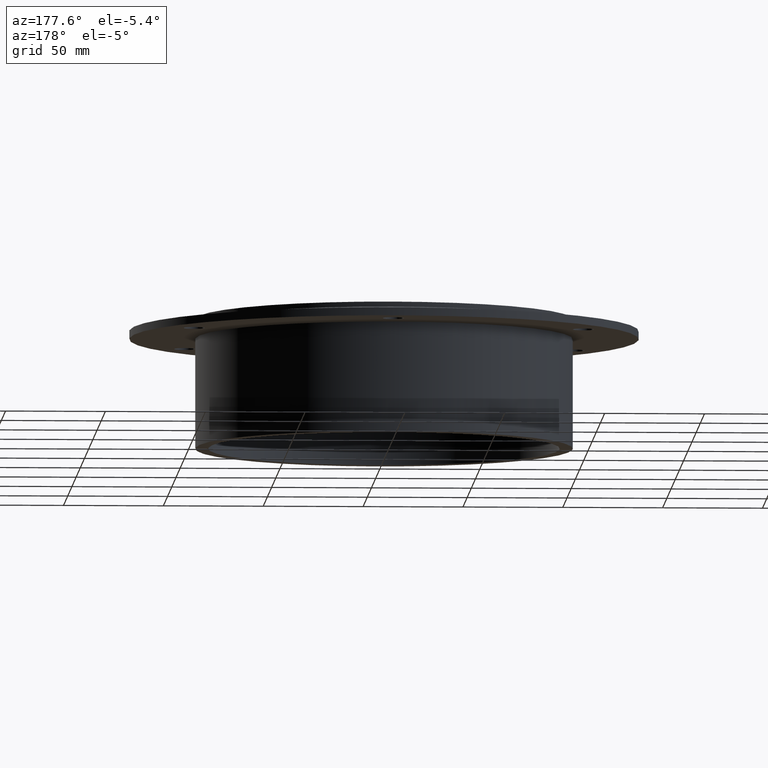
[diagram: clean part render]
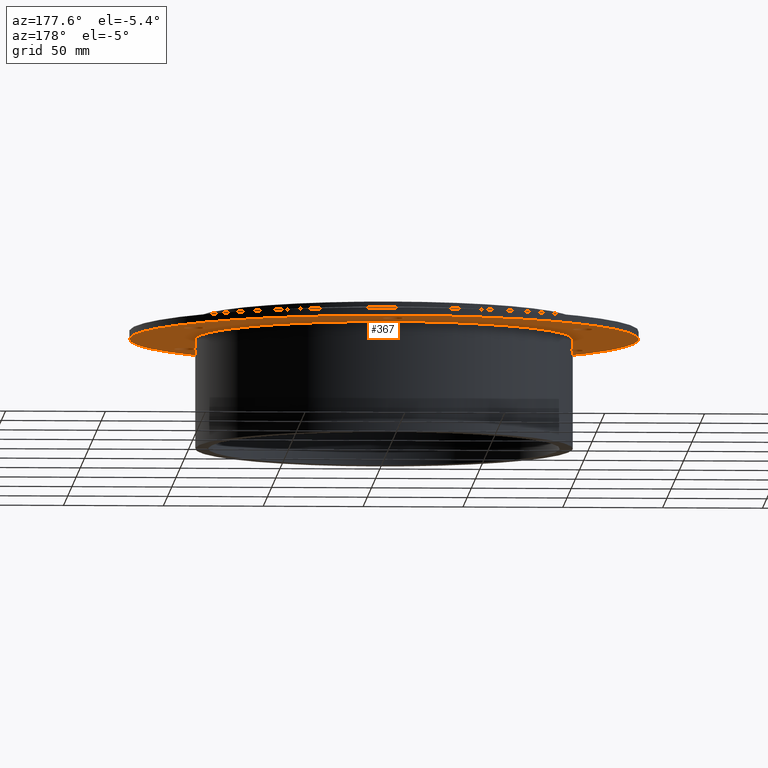
[diagram: same view with one face highlighted and labeled with its STEP entity id]
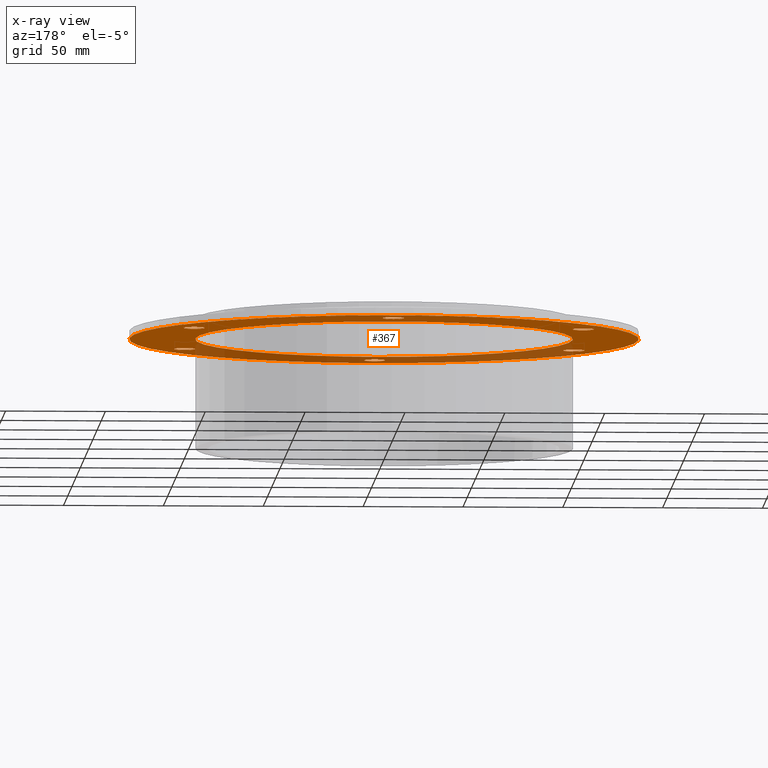
[diagram: x-ray of the same camera — body ghosted, the highlighted face saturated]
A machine part, auxiliary view. The second image highlights one B-rep face of the part: STEP entity #367.
The next image is the same camera in x-ray: the body ghosted, the highlighted face saturated — about 33% of this face is hidden behind the body in this view.
In plain terms, the highlighted planar face has unit normal (0, 0, 1).
Its self-contained STEP definition (entity closure, byte-faithful):
#73=CARTESIAN_POINT('',(-102.67785792574935,-56.249999999999986,-10.0));
#74=VERTEX_POINT('',#73);
#75=CARTESIAN_POINT('',(-97.42785792574935,-56.249999999999986,-10.0));
#76=DIRECTION('',(0.0,0.0,1.0));
#77=DIRECTION('',(1.0,0.0,0.0));
#78=AXIS2_PLACEMENT_3D('',#75,#76,#77);
#79=CIRCLE('',#78,5.25);
#80=EDGE_CURVE('',#74,#74,#79,.T.);
#101=CARTESIAN_POINT('',(92.177857925749294,-56.250000000000036,-10.0));
#102=VERTEX_POINT('',#101);
#103=CARTESIAN_POINT('',(97.427857925749294,-56.250000000000036,-10.0));
#104=DIRECTION('',(0.0,0.0,1.0));
#105=DIRECTION('',(1.0,0.0,0.0));
#106=AXIS2_PLACEMENT_3D('',#103,#104,#105);
#107=CIRCLE('',#106,5.25);
#108=EDGE_CURVE('',#102,#102,#107,.T.);
#129=CARTESIAN_POINT('',(-5.25,112.5,-10.0));
#130=VERTEX_POINT('',#129);
#131=CARTESIAN_POINT('',(0.0,112.5,-10.0));
#132=DIRECTION('',(0.0,0.0,1.0));
#133=DIRECTION('',(1.0,0.0,0.0));
#134=AXIS2_PLACEMENT_3D('',#131,#132,#133);
#135=CIRCLE('',#134,5.25);
#136=EDGE_CURVE('',#130,#130,#135,.T.);
#157=CARTESIAN_POINT('',(92.177857925749379,56.249999999999929,-10.0));
#158=VERTEX_POINT('',#157);
#159=CARTESIAN_POINT('',(97.427857925749379,56.249999999999929,-10.0));
#160=DIRECTION('',(0.0,0.0,1.0));
#161=DIRECTION('',(1.0,0.0,0.0));
#162=AXIS2_PLACEMENT_3D('',#159,#160,#161);
#163=CIRCLE('',#162,5.25);
#164=EDGE_CURVE('',#158,#158,#163,.T.);
#185=CARTESIAN_POINT('',(-5.250000000000009,-112.5,-10.0));
#186=VERTEX_POINT('',#185);
#187=CARTESIAN_POINT('',(-8.881784E-015,-112.5,-10.0));
#188=DIRECTION('',(0.0,0.0,1.0));
#189=DIRECTION('',(1.0,0.0,0.0));
#190=AXIS2_PLACEMENT_3D('',#187,#188,#189);
#191=CIRCLE('',#190,5.25);
#192=EDGE_CURVE('',#186,#186,#191,.T.);
#213=CARTESIAN_POINT('',(-102.67785792574935,56.250000000000028,-10.0));
#214=VERTEX_POINT('',#213);
#215=CARTESIAN_POINT('',(-97.42785792574935,56.250000000000028,-10.0));
#216=DIRECTION('',(0.0,0.0,1.0));
#217=DIRECTION('',(1.0,0.0,0.0));
#218=AXIS2_PLACEMENT_3D('',#215,#216,#217);
#219=CIRCLE('',#218,5.25);
#220=EDGE_CURVE('',#214,#214,#219,.T.);
#322=CARTESIAN_POINT('',(-1.301187E-015,0.0,-10.0));
#323=DIRECTION('',(0.0,0.0,1.0));
#324=DIRECTION('',(1.0,0.0,0.0));
#325=AXIS2_PLACEMENT_3D('',#322,#323,#324);
#326=PLANE('',#325);
#327=CARTESIAN_POINT('',(127.5,1.561425E-014,-10.0));
#328=VERTEX_POINT('',#327);
#329=CARTESIAN_POINT('',(0.0,0.0,-10.0));
#330=DIRECTION('',(0.0,0.0,-1.0));
#331=DIRECTION('',(-1.0,0.0,0.0));
#332=AXIS2_PLACEMENT_3D('',#329,#330,#331);
#333=CIRCLE('',#332,127.5);
#334=EDGE_CURVE('',#328,#328,#333,.T.);
#335=ORIENTED_EDGE('',*,*,#334,.T.);
#336=EDGE_LOOP('',(#335));
#337=FACE_OUTER_BOUND('',#336,.T.);
#338=ORIENTED_EDGE('',*,*,#80,.T.);
#339=EDGE_LOOP('',(#338));
#340=FACE_BOUND('',#339,.T.);
#341=ORIENTED_EDGE('',*,*,#108,.T.);
#342=EDGE_LOOP('',(#341));
#343=FACE_BOUND('',#342,.T.);
#344=ORIENTED_EDGE('',*,*,#136,.T.);
#345=EDGE_LOOP('',(#344));
#346=FACE_BOUND('',#345,.T.);
#347=ORIENTED_EDGE('',*,*,#164,.T.);
#348=EDGE_LOOP('',(#347));
#349=FACE_BOUND('',#348,.T.);
#350=ORIENTED_EDGE('',*,*,#192,.T.);
#351=EDGE_LOOP('',(#350));
#352=FACE_BOUND('',#351,.T.);
#353=ORIENTED_EDGE('',*,*,#220,.T.);
#354=EDGE_LOOP('',(#353));
#355=FACE_BOUND('',#354,.T.);
#356=CARTESIAN_POINT('',(94.500000000000014,1.157291E-014,-10.0));
#357=VERTEX_POINT('',#356);
#358=CARTESIAN_POINT('',(0.0,0.0,-10.0));
#359=DIRECTION('',(0.0,0.0,-1.0));
#360=DIRECTION('',(-1.0,0.0,0.0));
#361=AXIS2_PLACEMENT_3D('',#358,#359,#360);
#362=CIRCLE('',#361,94.500000000000014);
#363=EDGE_CURVE('',#357,#357,#362,.T.);
#364=ORIENTED_EDGE('',*,*,#363,.F.);
#365=EDGE_LOOP('',(#364));
#366=FACE_BOUND('',#365,.T.);
#367=ADVANCED_FACE('',(#337,#340,#343,#346,#349,#352,#355,#366),#326,.F.);